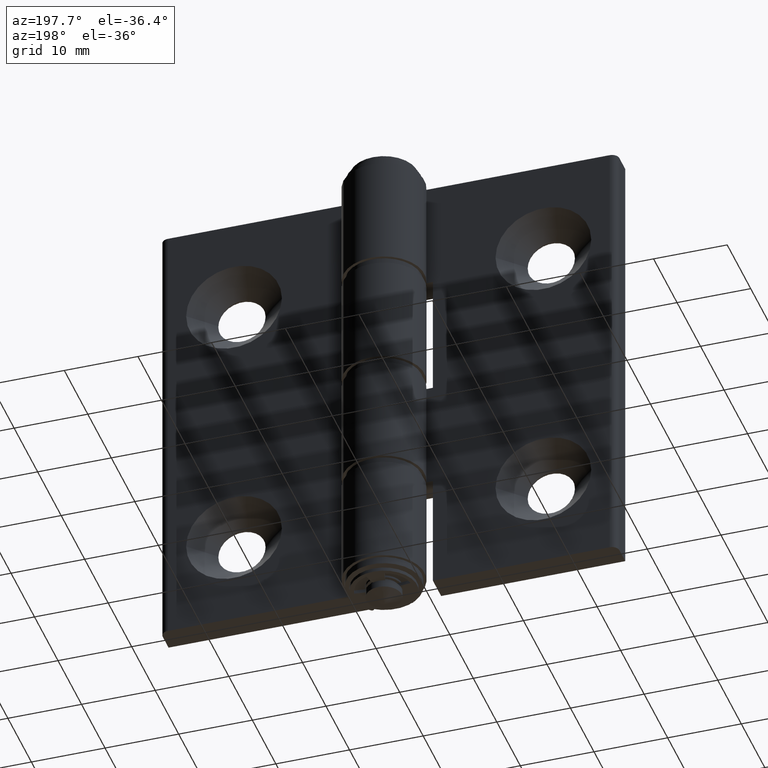
[diagram: clean part render]
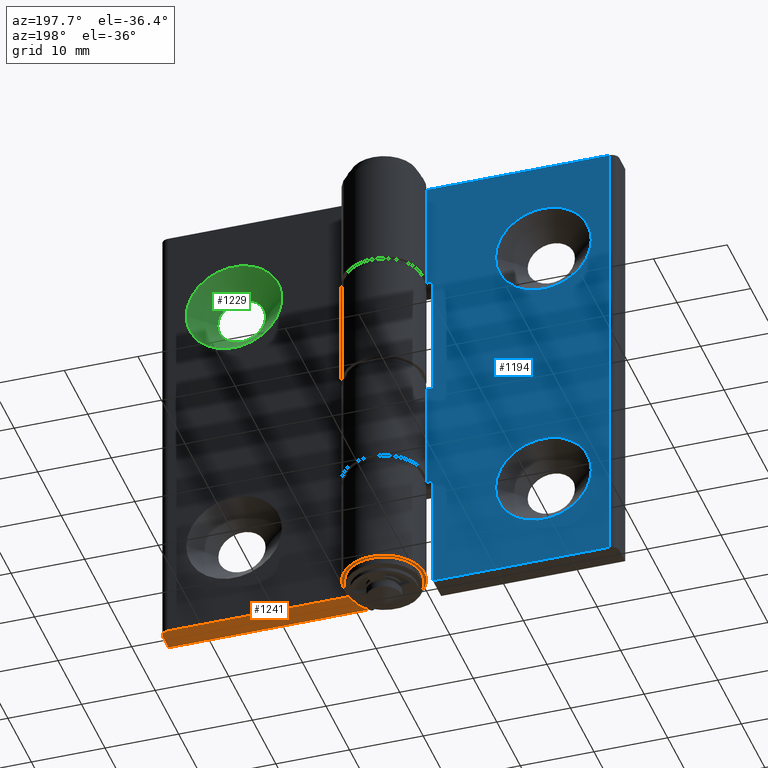
[diagram: same view with three faces highlighted in distinct colors, each labeled with its STEP entity id]
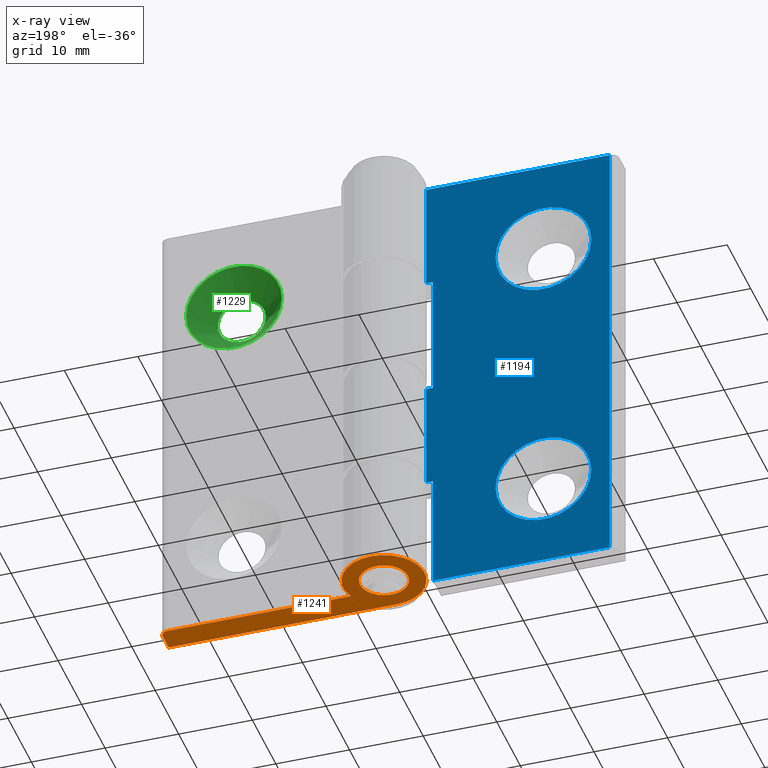
[diagram: x-ray of the same camera — body ghosted, the three highlighted faces saturated]
A machine part, auxiliary view with three faces highlighted in distinct colors.
The next image is the same camera in x-ray (body ghosted, the three faces saturated) — at least one of them is partly hidden behind the body in this view.
Their STEP definitions:

[orange] entity #1241 — the highlighted planar face has unit normal (0, 0, -1).
#111=FACE_BOUND('',#340,.T.);
#159=PLANE('',#1384);
#228=FACE_OUTER_BOUND('',#339,.T.);
#339=EDGE_LOOP('',(#1116,#1117,#1118,#1119,#1120));
#340=EDGE_LOOP('',(#1121));
#419=LINE('',#2048,#499);
#439=LINE('',#2118,#519);
#440=LINE('',#2124,#520);
#499=VECTOR('',#1668,2.5);
#519=VECTOR('',#1738,31.);
#520=VECTOR('',#1747,24.8765246170202);
#564=CIRCLE('',#1352,1.);
#578=CIRCLE('',#1378,5.5);
#579=CIRCLE('',#1382,3.25);
#660=VERTEX_POINT('',#2035);
#661=VERTEX_POINT('',#2036);
#665=VERTEX_POINT('',#2046);
#689=VERTEX_POINT('',#2111);
#690=VERTEX_POINT('',#2113);
#691=VERTEX_POINT('',#2121);
#797=EDGE_CURVE('',#660,#661,#564,.T.);
#803=EDGE_CURVE('',#660,#665,#419,.T.);
#833=EDGE_CURVE('',#690,#689,#578,.T.);
#836=EDGE_CURVE('',#665,#690,#439,.T.);
#837=EDGE_CURVE('',#691,#691,#579,.T.);
#838=EDGE_CURVE('',#689,#661,#440,.T.);
#1116=ORIENTED_EDGE('',*,*,#797,.F.);
#1117=ORIENTED_EDGE('',*,*,#803,.T.);
#1118=ORIENTED_EDGE('',*,*,#836,.T.);
#1119=ORIENTED_EDGE('',*,*,#833,.T.);
#1120=ORIENTED_EDGE('',*,*,#838,.T.);
#1121=ORIENTED_EDGE('',*,*,#837,.T.);
#1241=ADVANCED_FACE('',(#228,#111),#159,.T.);
#1352=AXIS2_PLACEMENT_3D('',#2037,#1658,#1659);
#1378=AXIS2_PLACEMENT_3D('',#2114,#1732,#1733);
#1382=AXIS2_PLACEMENT_3D('',#2122,#1743,#1744);
#1384=AXIS2_PLACEMENT_3D('',#2126,#1749,#1750);
#1658=DIRECTION('center_axis',(0.,0.,1.));
#1659=DIRECTION('ref_axis',(0.707106781186547,0.707106781186548,0.));
#1668=DIRECTION('',(-2.53765262771464E-15,-1.,0.));
#1732=DIRECTION('center_axis',(0.,0.,-1.));
#1733=DIRECTION('ref_axis',(-1.,0.,0.));
#1738=DIRECTION('',(-1.,0.,0.));
#1743=DIRECTION('center_axis',(0.,0.,1.));
#1744=DIRECTION('ref_axis',(-1.,0.,0.));
#1747=DIRECTION('',(1.,1.07440937866951E-16,0.));
#1749=DIRECTION('center_axis',(0.,0.,-1.));
#1750=DIRECTION('ref_axis',(-1.,0.,0.));
#2035=CARTESIAN_POINT('',(31.,2.5,-63.));
#2036=CARTESIAN_POINT('',(30.,3.5,-63.));
#2037=CARTESIAN_POINT('Origin',(30.,2.5,-63.));
#2046=CARTESIAN_POINT('',(31.,0.,-63.));
#2048=CARTESIAN_POINT('',(31.,0.,-63.));
#2111=CARTESIAN_POINT('',(5.1234753829798,3.5,-63.));
#2113=CARTESIAN_POINT('',(0.,0.,-63.));
#2114=CARTESIAN_POINT('Origin',(0.,5.5,-63.));
#2118=CARTESIAN_POINT('',(0.,0.,-63.));
#2121=CARTESIAN_POINT('',(3.25,5.5,-63.));
#2122=CARTESIAN_POINT('Origin',(0.,5.5,-63.));
#2124=CARTESIAN_POINT('',(31.,3.5,-63.));
#2126=CARTESIAN_POINT('Origin',(15.5,1.75,-63.));

[blue] entity #1194 — the highlighted planar face has unit normal (-0, 1, 0).
#86=FACE_BOUND('',#268,.T.);
#87=FACE_BOUND('',#269,.T.);
#136=PLANE('',#1292);
#181=FACE_OUTER_BOUND('',#267,.T.);
#267=EDGE_LOOP('',(#914,#915,#916,#917,#918,#919,#920,#921,#922,#923));
#268=EDGE_LOOP('',(#924));
#269=EDGE_LOOP('',(#925));
#363=LINE('',#1828,#443);
#367=LINE('',#1837,#447);
#370=LINE('',#1869,#450);
#373=LINE('',#1875,#453);
#375=LINE('',#1882,#455);
#379=LINE('',#1890,#459);
#381=LINE('',#1896,#461);
#383=LINE('',#1902,#463);
#387=LINE('',#1910,#467);
#388=LINE('',#1911,#468);
#443=VECTOR('',#1428,63.);
#447=VECTOR('',#1436,24.);
#450=VECTOR('',#1473,16.);
#453=VECTOR('',#1478,0.876524617020196);
#455=VECTOR('',#1484,17.);
#459=VECTOR('',#1490,0.876524617020189);
#461=VECTOR('',#1496,0.876524617020182);
#463=VECTOR('',#1502,15.);
#467=VECTOR('',#1512,24.8765246170202);
#468=VECTOR('',#1513,15.);
#524=CIRCLE('',#1266,6.5);
#527=CIRCLE('',#1271,6.5);
#590=VERTEX_POINT('',#1821);
#593=VERTEX_POINT('',#1826);
#596=VERTEX_POINT('',#1836);
#598=VERTEX_POINT('',#1842);
#601=VERTEX_POINT('',#1850);
#608=VERTEX_POINT('',#1868);
#610=VERTEX_POINT('',#1874);
#612=VERTEX_POINT('',#1880);
#613=VERTEX_POINT('',#1881);
#616=VERTEX_POINT('',#1889);
#618=VERTEX_POINT('',#1895);
#620=VERTEX_POINT('',#1901);
#705=EDGE_CURVE('',#593,#590,#363,.T.);
#709=EDGE_CURVE('',#590,#596,#367,.T.);
#712=EDGE_CURVE('',#598,#598,#524,.T.);
#715=EDGE_CURVE('',#601,#601,#527,.T.);
#722=EDGE_CURVE('',#608,#596,#370,.T.);
#725=EDGE_CURVE('',#610,#608,#373,.T.);
#728=EDGE_CURVE('',#612,#613,#375,.T.);
#732=EDGE_CURVE('',#613,#616,#379,.T.);
#735=EDGE_CURVE('',#618,#612,#381,.T.);
#738=EDGE_CURVE('',#618,#620,#383,.T.);
#743=EDGE_CURVE('',#593,#620,#387,.T.);
#744=EDGE_CURVE('',#610,#616,#388,.T.);
#914=ORIENTED_EDGE('',*,*,#705,.F.);
#915=ORIENTED_EDGE('',*,*,#743,.T.);
#916=ORIENTED_EDGE('',*,*,#738,.F.);
#917=ORIENTED_EDGE('',*,*,#735,.T.);
#918=ORIENTED_EDGE('',*,*,#728,.T.);
#919=ORIENTED_EDGE('',*,*,#732,.T.);
#920=ORIENTED_EDGE('',*,*,#744,.F.);
#921=ORIENTED_EDGE('',*,*,#725,.T.);
#922=ORIENTED_EDGE('',*,*,#722,.T.);
#923=ORIENTED_EDGE('',*,*,#709,.F.);
#924=ORIENTED_EDGE('',*,*,#712,.T.);
#925=ORIENTED_EDGE('',*,*,#715,.T.);
#1194=ADVANCED_FACE('',(#181,#86,#87),#136,.T.);
#1266=AXIS2_PLACEMENT_3D('',#1843,#1441,#1442);
#1271=AXIS2_PLACEMENT_3D('',#1851,#1451,#1452);
#1292=AXIS2_PLACEMENT_3D('',#1909,#1510,#1511);
#1428=DIRECTION('',(0.,0.,-1.));
#1436=DIRECTION('',(1.,2.50695521689551E-16,0.));
#1441=DIRECTION('center_axis',(2.50695521689551E-16,-1.,0.));
#1442=DIRECTION('ref_axis',(1.,2.50695521689552E-16,0.));
#1451=DIRECTION('center_axis',(2.50695521689551E-16,-1.,0.));
#1452=DIRECTION('ref_axis',(1.,2.50695521689552E-16,0.));
#1473=DIRECTION('',(-4.85722573273506E-16,-1.21768473903193E-31,-1.));
#1478=DIRECTION('',(-1.,-2.50695521689551E-16,0.));
#1484=DIRECTION('',(-3.91843420455938E-16,-9.82333907118195E-32,-1.));
#1490=DIRECTION('',(1.,2.50695521689551E-16,0.));
#1496=DIRECTION('',(-1.,-2.50695521689551E-16,0.));
#1502=DIRECTION('',(0.,0.,1.));
#1510=DIRECTION('center_axis',(-2.50695521689551E-16,1.,0.));
#1511=DIRECTION('ref_axis',(1.,2.66453525910038E-16,0.));
#1512=DIRECTION('',(1.,2.50695521689551E-16,0.));
#1513=DIRECTION('',(0.,0.,1.));
#1821=CARTESIAN_POINT('',(-30.,3.49999999999999,-63.));
#1826=CARTESIAN_POINT('',(-30.,3.49999999999999,0.));
#1828=CARTESIAN_POINT('',(-30.,3.49999999999999,0.));
#1836=CARTESIAN_POINT('',(-6.,3.5,-63.));
#1837=CARTESIAN_POINT('',(-31.,3.49999999999999,-63.));
#1842=CARTESIAN_POINT('',(-14.5,3.5,-50.));
#1843=CARTESIAN_POINT('Origin',(-21.,3.5,-50.));
#1850=CARTESIAN_POINT('',(-14.5,3.5,-13.));
#1851=CARTESIAN_POINT('Origin',(-21.,3.5,-13.));
#1868=CARTESIAN_POINT('',(-6.,3.5,-47.));
#1869=CARTESIAN_POINT('',(-5.99999999999999,3.5,-31.5));
#1874=CARTESIAN_POINT('',(-5.1234753829798,3.5,-47.));
#1875=CARTESIAN_POINT('',(-18.5,3.5,-47.));
#1880=CARTESIAN_POINT('',(-5.99999999999998,3.5,-15.));
#1881=CARTESIAN_POINT('',(-5.99999999999999,3.5,-32.));
#1882=CARTESIAN_POINT('',(-5.99999999999999,3.5,-16.));
#1889=CARTESIAN_POINT('',(-5.1234753829798,3.5,-32.));
#1890=CARTESIAN_POINT('',(-11.6106543631771,3.5,-32.));
#1895=CARTESIAN_POINT('',(-5.1234753829798,3.5,-15.));
#1896=CARTESIAN_POINT('',(-18.5,3.5,-15.));
#1901=CARTESIAN_POINT('',(-5.1234753829798,3.5,0.));
#1902=CARTESIAN_POINT('',(-5.1234753829798,3.5,0.));
#1909=CARTESIAN_POINT('Origin',(-31.,3.49999999999999,0.));
#1910=CARTESIAN_POINT('',(-31.,3.49999999999999,0.));
#1911=CARTESIAN_POINT('',(-5.1234753829798,3.5,0.));

[green] entity #1229 — the highlighted conical surface has half-angle 45 deg.
#100=FACE_BOUND('',#317,.T.);
#127=CONICAL_SURFACE('',#1361,4.875,45.);
#216=FACE_OUTER_BOUND('',#316,.T.);
#316=EDGE_LOOP('',(#1057));
#317=EDGE_LOOP('',(#1058));
#569=CIRCLE('',#1362,6.5);
#570=CIRCLE('',#1363,3.25);
#671=VERTEX_POINT('',#2064);
#672=VERTEX_POINT('',#2066);
#810=EDGE_CURVE('',#671,#671,#569,.T.);
#811=EDGE_CURVE('',#672,#672,#570,.T.);
#1057=ORIENTED_EDGE('',*,*,#810,.F.);
#1058=ORIENTED_EDGE('',*,*,#811,.F.);
#1229=ADVANCED_FACE('',(#216,#100),#127,.F.);
#1361=AXIS2_PLACEMENT_3D('',#2063,#1684,#1685);
#1362=AXIS2_PLACEMENT_3D('',#2065,#1686,#1687);
#1363=AXIS2_PLACEMENT_3D('',#2067,#1688,#1689);
#1684=DIRECTION('center_axis',(-1.07440937866951E-16,1.,0.));
#1685=DIRECTION('ref_axis',(1.,1.07440937866951E-16,0.));
#1686=DIRECTION('center_axis',(1.07440937866951E-16,-1.,0.));
#1687=DIRECTION('ref_axis',(1.,1.07440937866951E-16,0.));
#1688=DIRECTION('center_axis',(-1.07440937866951E-16,1.,0.));
#1689=DIRECTION('ref_axis',(1.,1.07440937866951E-16,0.));
#2063=CARTESIAN_POINT('Origin',(21.,1.875,-13.));
#2064=CARTESIAN_POINT('',(27.5,3.5,-13.));
#2065=CARTESIAN_POINT('Origin',(21.,3.5,-13.));
#2066=CARTESIAN_POINT('',(24.25,0.249999999999999,-13.));
#2067=CARTESIAN_POINT('Origin',(21.,0.249999999999997,-13.));